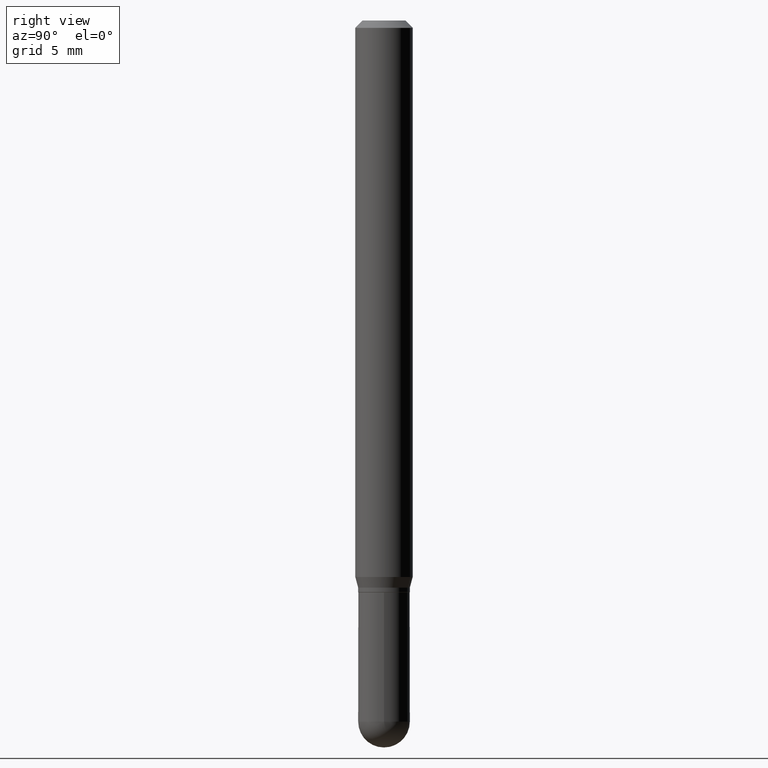
[diagram: clean part render]
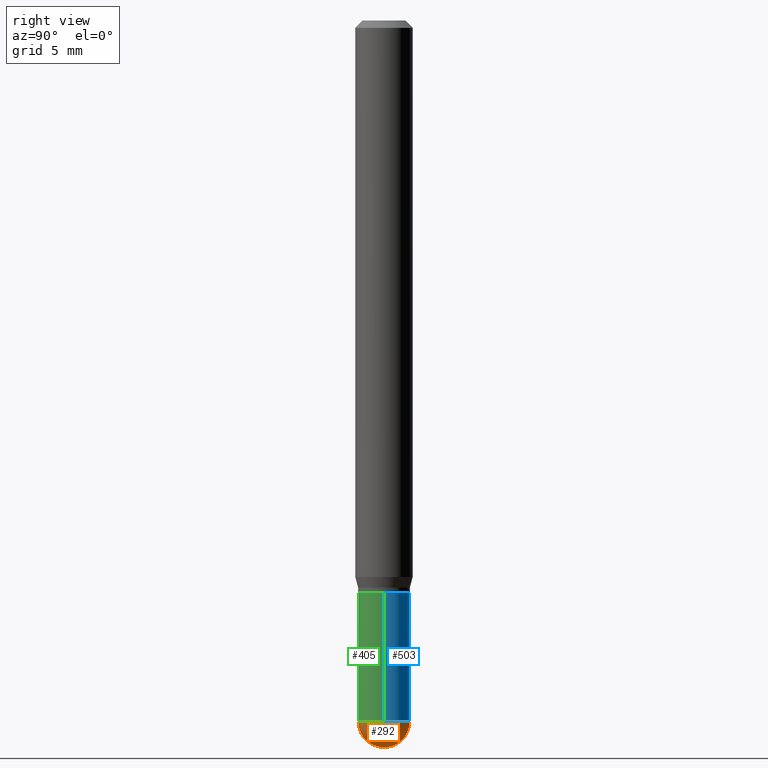
[diagram: same view with three faces highlighted in distinct colors, each labeled with its STEP entity id]
A machine part, right view with three faces highlighted in distinct colors.
Their STEP definitions:

[orange] entity #292 — the highlighted spherical surface has radius 1.35 mm.
#1 = DIRECTION ( 'NONE',  ( 1.000000000000000000, -6.982962677686260400E-15, 0.000000000000000000 ) ) ;
#27 = CARTESIAN_POINT ( 'NONE',  ( 0.05315000000000000280, -4.945246881303958097E-15, -1.442949999999999955 ) ) ;
#35 = EDGE_CURVE ( 'NONE', #315, #223, #284, .T. ) ;
#38 = CIRCLE ( 'NONE', #98, 0.05315000000000000280 ) ;
#41 = CARTESIAN_POINT ( 'NONE',  ( -3.711444663189892255E-16, -0.05315000000000497105, -1.442949999999999733 ) ) ;
#65 = DIRECTION ( 'NONE',  ( 7.105427357601001070E-15, 1.000000000000000000, 0.000000000000000000 ) ) ;
#70 = DIRECTION ( 'NONE',  ( -1.000000000000000000, 6.982962677686265922E-15, -4.883557194083112340E-29 ) ) ;
#98 = AXIS2_PLACEMENT_3D ( 'NONE', #146, #468, #1 ) ;
#99 = AXIS2_PLACEMENT_3D ( 'NONE', #255, #104, #222 ) ;
#104 = DIRECTION ( 'NONE',  ( 1.000000000000000000, -6.982962677686265922E-15, 4.883557194083112340E-29 ) ) ;
#107 = ORIENTED_EDGE ( 'NONE', *, *, #35, .F. ) ;
#117 = ORIENTED_EDGE ( 'NONE', *, *, #383, .F. ) ;
#123 = EDGE_CURVE ( 'NONE', #449, #315, #38, .T. ) ;
#146 = CARTESIAN_POINT ( 'NONE',  ( 3.528689213884843040E-29, -5.038032997883716336E-15, -1.442949999999999955 ) ) ;
#147 = DIRECTION ( 'NONE',  ( -6.982962677686265922E-15, -1.000000000000000000, 0.000000000000000000 ) ) ;
#163 = ORIENTED_EDGE ( 'NONE', *, *, #123, .F. ) ;
#170 = CIRCLE ( 'NONE', #398, 0.05314999999999985014 ) ;
#182 = CARTESIAN_POINT ( 'NONE',  ( 3.524144005057854329E-29, -5.044541995621184733E-15, -1.442949999999999955 ) ) ;
#190 = EDGE_LOOP ( 'NONE', ( #117, #208, #107, #163 ) ) ;
#208 = ORIENTED_EDGE ( 'NONE', *, *, #345, .T. ) ;
#213 = DIRECTION ( 'NONE',  ( 1.000000000000000000, -6.982962677686260400E-15, 0.000000000000000000 ) ) ;
#222 = DIRECTION ( 'NONE',  ( -6.982962677686265922E-15, -1.000000000000000000, 5.139883337091761328E-15 ) ) ;
#223 = VERTEX_POINT ( 'NONE', #277 ) ;
#245 = FACE_OUTER_BOUND ( 'NONE', #190, .T. ) ;
#255 = CARTESIAN_POINT ( 'NONE',  ( 3.524144005057854329E-29, -5.044541995621184733E-15, -1.442949999999999955 ) ) ;
#264 = SPHERICAL_SURFACE ( 'NONE', #99, 0.05314999999999985014 ) ;
#271 = AXIS2_PLACEMENT_3D ( 'NONE', #504, #70, #147 ) ;
#277 = CARTESIAN_POINT ( 'NONE',  ( 3.776534640565279785E-16, 0.05314999999999488189, -1.442950000000000177 ) ) ;
#284 = CIRCLE ( 'NONE', #490, 0.05315000000000000280 ) ;
#292 = ADVANCED_FACE ( 'NONE', ( #245 ), #264, .T. ) ;
#294 = DIRECTION ( 'NONE',  ( 1.000000000000000000, -7.105427357601001070E-15, 4.926315508542082329E-29 ) ) ;
#315 = VERTEX_POINT ( 'NONE', #27 ) ;
#320 = VERTEX_POINT ( 'NONE', #496 ) ;
#345 = EDGE_CURVE ( 'NONE', #320, #223, #170, .T. ) ;
#383 = EDGE_CURVE ( 'NONE', #320, #449, #463, .T. ) ;
#398 = AXIS2_PLACEMENT_3D ( 'NONE', #182, #294, #65 ) ;
#408 = CARTESIAN_POINT ( 'NONE',  ( 3.528689213884843040E-29, -5.038032997883716336E-15, -1.442949999999999955 ) ) ;
#436 = DIRECTION ( 'NONE',  ( -2.445468806185136597E-29, 3.491481338843145583E-15, 1.000000000000000000 ) ) ;
#449 = VERTEX_POINT ( 'NONE', #41 ) ;
#463 = CIRCLE ( 'NONE', #271, 0.05314999999999985014 ) ;
#468 = DIRECTION ( 'NONE',  ( -2.445468806185136597E-29, 3.491481338843145583E-15, 1.000000000000000000 ) ) ;
#490 = AXIS2_PLACEMENT_3D ( 'NONE', #408, #436, #213 ) ;
#496 = CARTESIAN_POINT ( 'NONE',  ( 3.651848067693100163E-29, -5.233368727649431466E-15, -1.496099999999999985 ) ) ;
#504 = CARTESIAN_POINT ( 'NONE',  ( 3.524144005057854329E-29, -5.044541995621184733E-15, -1.442949999999999955 ) ) ;

[blue] entity #503 — the highlighted cylindrical surface (edge-blend (fillet) strip) has radius 1.35 mm, axis along (-0, 0, 1).
#2 = CARTESIAN_POINT ( 'NONE',  ( 0.05315000000000000280, -4.481316298405176366E-15, -1.177200000000000024 ) ) ;
#4 = DIRECTION ( 'NONE',  ( 1.000000000000000000, -6.982962677686269077E-15, 0.000000000000000000 ) ) ;
#27 = CARTESIAN_POINT ( 'NONE',  ( 0.05315000000000000280, -4.945246881303958097E-15, -1.442949999999999955 ) ) ;
#35 = EDGE_CURVE ( 'NONE', #315, #223, #284, .T. ) ;
#36 = ORIENTED_EDGE ( 'NONE', *, *, #35, .T. ) ;
#43 = FACE_OUTER_BOUND ( 'NONE', #57, .T. ) ;
#45 = DIRECTION ( 'NONE',  ( -2.445468806185136597E-29, 3.491481338843145583E-15, 1.000000000000000000 ) ) ;
#57 = EDGE_LOOP ( 'NONE', ( #140, #473, #248, #323, #36 ) ) ;
#62 = VECTOR ( 'NONE', #409, 39.37007874015748143 ) ;
#78 = CARTESIAN_POINT ( 'NONE',  ( 2.878805878641142370E-29, -4.110171832086151297E-15, -1.177200000000000024 ) ) ;
#112 = CARTESIAN_POINT ( 'NONE',  ( 0.000000000000000000, 0.000000000000000000, 0.000000000000000000 ) ) ;
#124 = DIRECTION ( 'NONE',  ( 1.000000000000000000, -6.982962677686260400E-15, 0.000000000000000000 ) ) ;
#140 = ORIENTED_EDGE ( 'NONE', *, *, #456, .T. ) ;
#162 = LINE ( 'NONE', #441, #62 ) ;
#201 = DIRECTION ( 'NONE',  ( 1.000000000000000000, -6.982962677686267499E-15, 4.876176775795935232E-29 ) ) ;
#213 = DIRECTION ( 'NONE',  ( 1.000000000000000000, -6.982962677686260400E-15, 0.000000000000000000 ) ) ;
#220 = EDGE_CURVE ( 'NONE', #474, #431, #453, .T. ) ;
#223 = VERTEX_POINT ( 'NONE', #277 ) ;
#224 = EDGE_CURVE ( 'NONE', #505, #431, #162, .T. ) ;
#237 = CARTESIAN_POINT ( 'NONE',  ( -0.05315000000000000280, -4.196448950928440351E-15, -1.177200000000000024 ) ) ;
#246 = DIRECTION ( 'NONE',  ( -2.445468806185136597E-29, 3.491481338843145583E-15, 1.000000000000000000 ) ) ;
#248 = ORIENTED_EDGE ( 'NONE', *, *, #220, .F. ) ;
#253 = AXIS2_PLACEMENT_3D ( 'NONE', #483, #246, #124 ) ;
#257 = VECTOR ( 'NONE', #362, 39.37007874015748143 ) ;
#272 = CARTESIAN_POINT ( 'NONE',  ( -0.05315000000000000280, -4.196448950928440351E-15, -1.442949999999999955 ) ) ;
#277 = CARTESIAN_POINT ( 'NONE',  ( 3.776534640565279785E-16, 0.05314999999999488189, -1.442950000000000177 ) ) ;
#284 = CIRCLE ( 'NONE', #490, 0.05315000000000000280 ) ;
#305 = DIRECTION ( 'NONE',  ( -2.445468806185136597E-29, 3.491481338843145583E-15, 1.000000000000000000 ) ) ;
#308 = AXIS2_PLACEMENT_3D ( 'NONE', #78, #45, #4 ) ;
#315 = VERTEX_POINT ( 'NONE', #27 ) ;
#318 = CYLINDRICAL_SURFACE ( 'NONE', #397, 0.05315000000000000280 ) ;
#323 = ORIENTED_EDGE ( 'NONE', *, *, #439, .F. ) ;
#362 = DIRECTION ( 'NONE',  ( -2.445468806185136877E-29, 3.491481338843145188E-15, 1.000000000000000000 ) ) ;
#397 = AXIS2_PLACEMENT_3D ( 'NONE', #112, #305, #201 ) ;
#401 = LINE ( 'NONE', #475, #257 ) ;
#408 = CARTESIAN_POINT ( 'NONE',  ( 3.528689213884843040E-29, -5.038032997883716336E-15, -1.442949999999999955 ) ) ;
#409 = DIRECTION ( 'NONE',  ( -2.445468806185136877E-29, 3.491481338843145188E-15, 1.000000000000000000 ) ) ;
#431 = VERTEX_POINT ( 'NONE', #237 ) ;
#434 = CIRCLE ( 'NONE', #253, 0.05315000000000000280 ) ;
#436 = DIRECTION ( 'NONE',  ( -2.445468806185136597E-29, 3.491481338843145583E-15, 1.000000000000000000 ) ) ;
#439 = EDGE_CURVE ( 'NONE', #315, #474, #401, .T. ) ;
#441 = CARTESIAN_POINT ( 'NONE',  ( -0.05315000000000000280, 3.776534640564932687E-16, -2.614414000470482529E-30 ) ) ;
#453 = CIRCLE ( 'NONE', #308, 0.05315000000000000280 ) ;
#456 = EDGE_CURVE ( 'NONE', #223, #505, #434, .T. ) ;
#473 = ORIENTED_EDGE ( 'NONE', *, *, #224, .T. ) ;
#474 = VERTEX_POINT ( 'NONE', #2 ) ;
#475 = CARTESIAN_POINT ( 'NONE',  ( 0.05315000000000000280, -3.711444663190251187E-16, 2.591687956335539675E-30 ) ) ;
#483 = CARTESIAN_POINT ( 'NONE',  ( 3.528689213884843040E-29, -5.038032997883716336E-15, -1.442949999999999955 ) ) ;
#490 = AXIS2_PLACEMENT_3D ( 'NONE', #408, #436, #213 ) ;
#503 = ADVANCED_FACE ( 'NONE', ( #43 ), #318, .T. ) ;
#505 = VERTEX_POINT ( 'NONE', #272 ) ;

[green] entity #405 — the highlighted cylindrical surface (edge-blend (fillet) strip) has radius 1.35 mm, axis along (-0, 0, 1).
#1 = DIRECTION ( 'NONE',  ( 1.000000000000000000, -6.982962677686260400E-15, 0.000000000000000000 ) ) ;
#2 = CARTESIAN_POINT ( 'NONE',  ( 0.05315000000000000280, -4.481316298405176366E-15, -1.177200000000000024 ) ) ;
#27 = CARTESIAN_POINT ( 'NONE',  ( 0.05315000000000000280, -4.945246881303958097E-15, -1.442949999999999955 ) ) ;
#30 = ORIENTED_EDGE ( 'NONE', *, *, #439, .T. ) ;
#38 = CIRCLE ( 'NONE', #98, 0.05315000000000000280 ) ;
#41 = CARTESIAN_POINT ( 'NONE',  ( -3.711444663189892255E-16, -0.05315000000000497105, -1.442949999999999733 ) ) ;
#62 = VECTOR ( 'NONE', #409, 39.37007874015748143 ) ;
#82 = DIRECTION ( 'NONE',  ( 1.000000000000000000, -6.982962677686260400E-15, 0.000000000000000000 ) ) ;
#98 = AXIS2_PLACEMENT_3D ( 'NONE', #146, #468, #1 ) ;
#123 = EDGE_CURVE ( 'NONE', #449, #315, #38, .T. ) ;
#131 = EDGE_CURVE ( 'NONE', #505, #449, #157, .T. ) ;
#139 = CARTESIAN_POINT ( 'NONE',  ( 0.000000000000000000, 0.000000000000000000, 0.000000000000000000 ) ) ;
#146 = CARTESIAN_POINT ( 'NONE',  ( 3.528689213884843040E-29, -5.038032997883716336E-15, -1.442949999999999955 ) ) ;
#157 = CIRCLE ( 'NONE', #461, 0.05315000000000000280 ) ;
#162 = LINE ( 'NONE', #441, #62 ) ;
#173 = DIRECTION ( 'NONE',  ( -2.445468806185136597E-29, 3.491481338843145583E-15, 1.000000000000000000 ) ) ;
#180 = CIRCLE ( 'NONE', #421, 0.05315000000000000280 ) ;
#183 = DIRECTION ( 'NONE',  ( -2.445468806185136597E-29, 3.491481338843145583E-15, 1.000000000000000000 ) ) ;
#224 = EDGE_CURVE ( 'NONE', #505, #431, #162, .T. ) ;
#225 = DIRECTION ( 'NONE',  ( 1.000000000000000000, -6.982962677686269077E-15, 0.000000000000000000 ) ) ;
#237 = CARTESIAN_POINT ( 'NONE',  ( -0.05315000000000000280, -4.196448950928440351E-15, -1.177200000000000024 ) ) ;
#257 = VECTOR ( 'NONE', #362, 39.37007874015748143 ) ;
#272 = CARTESIAN_POINT ( 'NONE',  ( -0.05315000000000000280, -4.196448950928440351E-15, -1.442949999999999955 ) ) ;
#278 = ORIENTED_EDGE ( 'NONE', *, *, #131, .T. ) ;
#315 = VERTEX_POINT ( 'NONE', #27 ) ;
#337 = FACE_OUTER_BOUND ( 'NONE', #442, .T. ) ;
#346 = DIRECTION ( 'NONE',  ( -2.445468806185136597E-29, 3.491481338843145583E-15, 1.000000000000000000 ) ) ;
#348 = ORIENTED_EDGE ( 'NONE', *, *, #363, .F. ) ;
#362 = DIRECTION ( 'NONE',  ( -2.445468806185136877E-29, 3.491481338843145188E-15, 1.000000000000000000 ) ) ;
#363 = EDGE_CURVE ( 'NONE', #431, #474, #180, .T. ) ;
#370 = CARTESIAN_POINT ( 'NONE',  ( 3.528689213884843040E-29, -5.038032997883716336E-15, -1.442949999999999955 ) ) ;
#385 = DIRECTION ( 'NONE',  ( 1.000000000000000000, -6.982962677686267499E-15, 4.876176775795935232E-29 ) ) ;
#387 = ORIENTED_EDGE ( 'NONE', *, *, #123, .T. ) ;
#401 = LINE ( 'NONE', #475, #257 ) ;
#405 = ADVANCED_FACE ( 'NONE', ( #337 ), #459, .T. ) ;
#409 = DIRECTION ( 'NONE',  ( -2.445468806185136877E-29, 3.491481338843145188E-15, 1.000000000000000000 ) ) ;
#421 = AXIS2_PLACEMENT_3D ( 'NONE', #428, #346, #225 ) ;
#428 = CARTESIAN_POINT ( 'NONE',  ( 2.878805878641142370E-29, -4.110171832086151297E-15, -1.177200000000000024 ) ) ;
#431 = VERTEX_POINT ( 'NONE', #237 ) ;
#439 = EDGE_CURVE ( 'NONE', #315, #474, #401, .T. ) ;
#441 = CARTESIAN_POINT ( 'NONE',  ( -0.05315000000000000280, 3.776534640564932687E-16, -2.614414000470482529E-30 ) ) ;
#442 = EDGE_LOOP ( 'NONE', ( #460, #278, #387, #30, #348 ) ) ;
#449 = VERTEX_POINT ( 'NONE', #41 ) ;
#459 = CYLINDRICAL_SURFACE ( 'NONE', #478, 0.05315000000000000280 ) ;
#460 = ORIENTED_EDGE ( 'NONE', *, *, #224, .F. ) ;
#461 = AXIS2_PLACEMENT_3D ( 'NONE', #370, #173, #82 ) ;
#468 = DIRECTION ( 'NONE',  ( -2.445468806185136597E-29, 3.491481338843145583E-15, 1.000000000000000000 ) ) ;
#474 = VERTEX_POINT ( 'NONE', #2 ) ;
#475 = CARTESIAN_POINT ( 'NONE',  ( 0.05315000000000000280, -3.711444663190251187E-16, 2.591687956335539675E-30 ) ) ;
#478 = AXIS2_PLACEMENT_3D ( 'NONE', #139, #183, #385 ) ;
#505 = VERTEX_POINT ( 'NONE', #272 ) ;